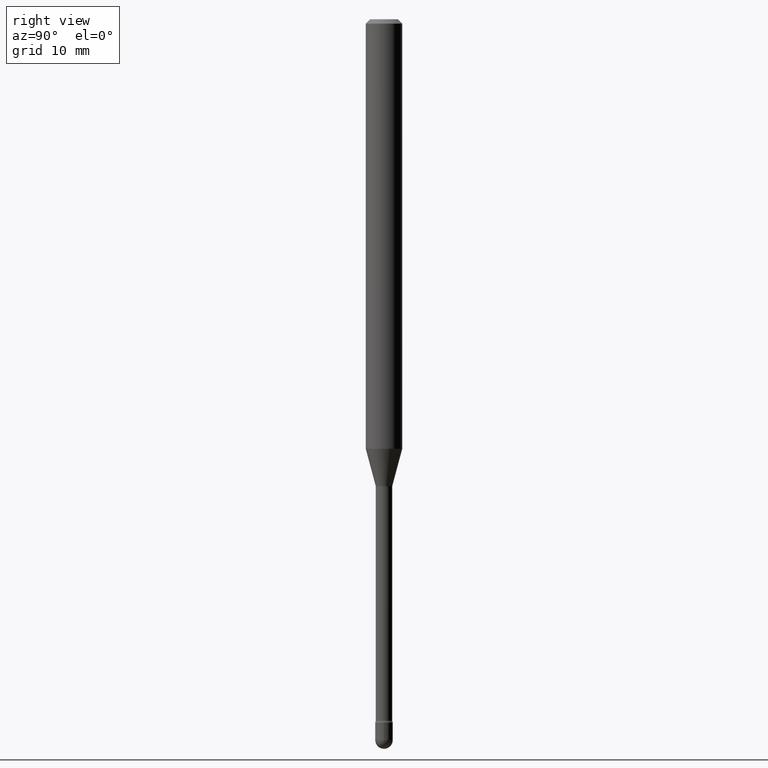
[diagram: clean part render]
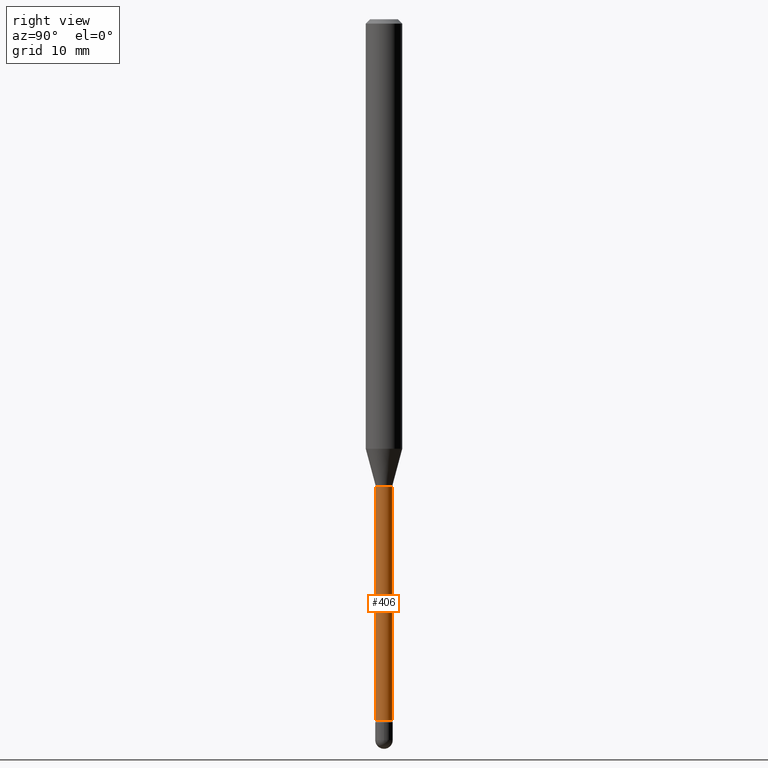
[diagram: same view with one face highlighted and labeled with its STEP entity id]
A machine part, right view. The second image highlights one B-rep face of the part: STEP entity #406.
In plain terms, the highlighted cylindrical surface (edge-blend (fillet) strip) has radius 0.7163 mm, axis along (-0, 0, 1).
Its self-contained STEP definition (entity closure, byte-faithful):
#16 = LINE ( 'NONE', #197, #216 ) ;
#27 = ORIENTED_EDGE ( 'NONE', *, *, #33, .T. ) ;
#31 = AXIS2_PLACEMENT_3D ( 'NONE', #362, #272, #497 ) ;
#33 = EDGE_CURVE ( 'NONE', #73, #135, #16, .T. ) ;
#39 = DIRECTION ( 'NONE',  ( -2.445430871415166747E-29, 3.491535663592855480E-15, 1.000000000000000000 ) ) ;
#55 = CIRCLE ( 'NONE', #302, 0.02820000000000016938 ) ;
#73 = VERTEX_POINT ( 'NONE', #245 ) ;
#79 = CARTESIAN_POINT ( 'NONE',  ( -1.969195475106951401E-16, -0.02820000000000855503, -2.402875394747777893 ) ) ;
#117 = ORIENTED_EDGE ( 'NONE', *, *, #531, .F. ) ;
#118 = CARTESIAN_POINT ( 'NONE',  ( 5.876065670480121665E-29, -8.389725135931628205E-15, -2.402875394747777893 ) ) ;
#135 = VERTEX_POINT ( 'NONE', #502 ) ;
#193 = LINE ( 'NONE', #530, #561 ) ;
#197 = CARTESIAN_POINT ( 'NONE',  ( 2.003730514843488150E-16, 0.02820000000000008264, 3.796120931779272295E-16 ) ) ;
#216 = VECTOR ( 'NONE', #326, 39.37007874015748143 ) ;
#222 = CARTESIAN_POINT ( 'NONE',  ( -1.969195475107134811E-16, -0.02820000000000558865, -1.601974787463811278 ) ) ;
#245 = CARTESIAN_POINT ( 'NONE',  ( 2.067679361062483248E-16, 0.02819999999999178025, -2.402875394747777893 ) ) ;
#250 = ORIENTED_EDGE ( 'NONE', *, *, #349, .F. ) ;
#272 = DIRECTION ( 'NONE',  ( -2.445430871415166747E-29, 3.491535663592855480E-15, 1.000000000000000000 ) ) ;
#293 = VERTEX_POINT ( 'NONE', #222 ) ;
#296 = VERTEX_POINT ( 'NONE', #79 ) ;
#302 = AXIS2_PLACEMENT_3D ( 'NONE', #118, #39, #388 ) ;
#314 = FACE_OUTER_BOUND ( 'NONE', #387, .T. ) ;
#318 = CARTESIAN_POINT ( 'NONE',  ( 3.917518600492754438E-29, -5.593352102606481311E-15, -1.601974787463811278 ) ) ;
#326 = DIRECTION ( 'NONE',  ( -2.445430871415166747E-29, 3.491535663592855086E-15, 1.000000000000000000 ) ) ;
#349 = EDGE_CURVE ( 'NONE', #293, #135, #548, .T. ) ;
#357 = EDGE_CURVE ( 'NONE', #296, #73, #55, .T. ) ;
#362 = CARTESIAN_POINT ( 'NONE',  ( -1.169113584055446105E-44, 1.669184350826100908E-30, 4.780733988912460139E-16 ) ) ;
#383 = DIRECTION ( 'NONE',  ( -6.982962677686265922E-15, -1.000000000000000000, 0.000000000000000000 ) ) ;
#387 = EDGE_LOOP ( 'NONE', ( #389, #27, #250, #117 ) ) ;
#388 = DIRECTION ( 'NONE',  ( -6.982962677686265922E-15, -1.000000000000000000, 0.000000000000000000 ) ) ;
#389 = ORIENTED_EDGE ( 'NONE', *, *, #357, .T. ) ;
#406 = ADVANCED_FACE ( 'NONE', ( #314 ), #415, .T. ) ;
#415 = CYLINDRICAL_SURFACE ( 'NONE', #31, 0.02820000000000008264 ) ;
#489 = DIRECTION ( 'NONE',  ( -2.445430871415166747E-29, 3.491535663592855480E-15, 1.000000000000000000 ) ) ;
#497 = DIRECTION ( 'NONE',  ( -6.982962677686265922E-15, -1.000000000000000000, 3.491535663592856663E-15 ) ) ;
#500 = DIRECTION ( 'NONE',  ( -2.445430871415166747E-29, 3.491535663592855086E-15, 1.000000000000000000 ) ) ;
#502 = CARTESIAN_POINT ( 'NONE',  ( 2.003730514844074372E-16, 0.02819999999999440662, -1.601974787463811278 ) ) ;
#530 = CARTESIAN_POINT ( 'NONE',  ( -1.969195475107532693E-16, -0.02820000000000008264, 5.765347046045648970E-16 ) ) ;
#531 = EDGE_CURVE ( 'NONE', #296, #293, #193, .T. ) ;
#548 = CIRCLE ( 'NONE', #566, 0.02819999999999999590 ) ;
#561 = VECTOR ( 'NONE', #500, 39.37007874015748143 ) ;
#566 = AXIS2_PLACEMENT_3D ( 'NONE', #318, #489, #383 ) ;